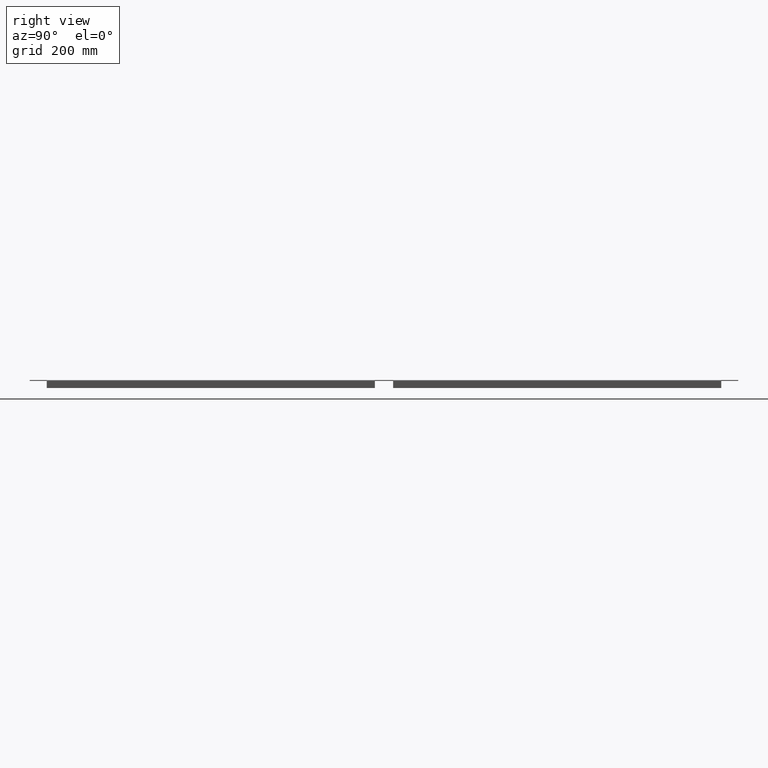
[diagram: clean part render]
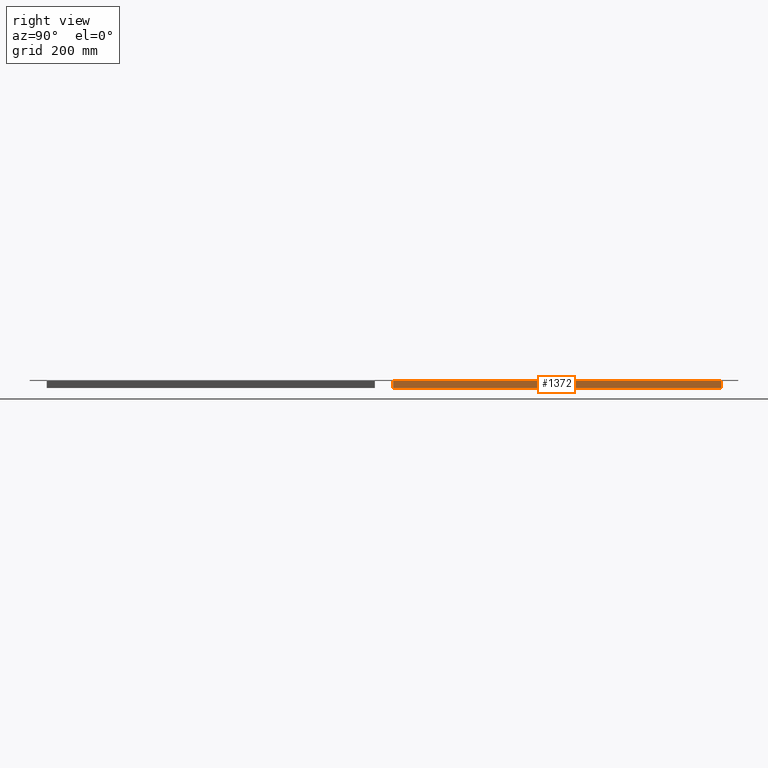
[diagram: same view with one face highlighted and labeled with its STEP entity id]
A machine part, right view. The second image highlights one B-rep face of the part: STEP entity #1372.
In plain terms, the highlighted planar face has unit normal (1, 0, 0).
Its self-contained STEP definition (entity closure, byte-faithful):
#724=CARTESIAN_POINT('',(20.0,40.000000000000007,-0.781249999999907));
#725=VERTEX_POINT('',#724);
#732=CARTESIAN_POINT('',(20.0,40.000000000000007,-0.015));
#733=VERTEX_POINT('',#732);
#734=CARTESIAN_POINT('',(19.999999999999993,40.000000000000014,-0.015));
#735=DIRECTION('',(0.0,0.0,-1.0));
#736=VECTOR('',#735,0.766249999999907);
#737=LINE('',#734,#736);
#738=EDGE_CURVE('',#733,#725,#737,.T.);
#1002=CARTESIAN_POINT('',(19.999999999999975,76.125000000000014,-0.015000000000021));
#1003=VERTEX_POINT('',#1002);
#1004=CARTESIAN_POINT('',(19.999999999999975,40.000000000000007,-0.015000000000032));
#1005=DIRECTION('',(0.0,1.0,0.0));
#1006=VECTOR('',#1005,36.125000000000007);
#1007=LINE('',#1004,#1006);
#1008=EDGE_CURVE('',#733,#1003,#1007,.T.);
#1349=CARTESIAN_POINT('',(19.999999999999986,76.125000000000014,0.09375));
#1350=DIRECTION('',(1.0,0.0,0.0));
#1351=DIRECTION('',(0.0,0.0,-1.0));
#1352=AXIS2_PLACEMENT_3D('',#1349,#1350,#1351);
#1353=PLANE('',#1352);
#1354=ORIENTED_EDGE('',*,*,#738,.T.);
#1355=CARTESIAN_POINT('',(19.999999999999986,76.125000000000014,-0.78125));
#1356=VERTEX_POINT('',#1355);
#1357=CARTESIAN_POINT('',(19.999999999999986,76.125000000000014,-0.78125));
#1358=DIRECTION('',(0.0,-1.0,0.0));
#1359=VECTOR('',#1358,36.125000000000007);
#1360=LINE('',#1357,#1359);
#1361=EDGE_CURVE('',#1356,#725,#1360,.T.);
#1362=ORIENTED_EDGE('',*,*,#1361,.F.);
#1363=CARTESIAN_POINT('',(19.999999999999986,76.125000000000014,-0.78125));
#1364=DIRECTION('',(0.0,0.0,1.0));
#1365=VECTOR('',#1364,0.76625);
#1366=LINE('',#1363,#1365);
#1367=EDGE_CURVE('',#1356,#1003,#1366,.T.);
#1368=ORIENTED_EDGE('',*,*,#1367,.T.);
#1369=ORIENTED_EDGE('',*,*,#1008,.F.);
#1370=EDGE_LOOP('',(#1354,#1362,#1368,#1369));
#1371=FACE_OUTER_BOUND('',#1370,.T.);
#1372=ADVANCED_FACE('',(#1371),#1353,.T.);